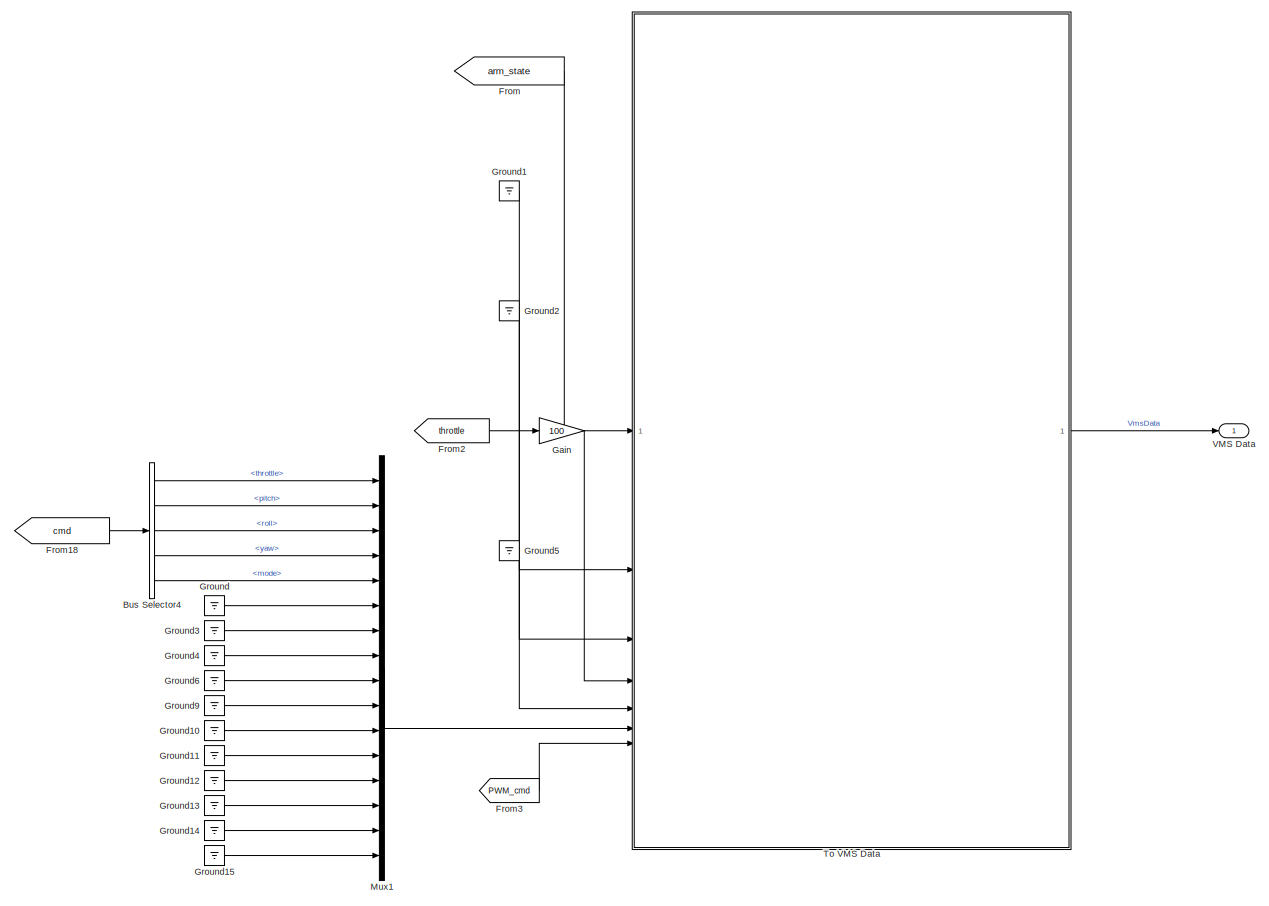
[diagram: root canvas - part 1/2, right side, full height]
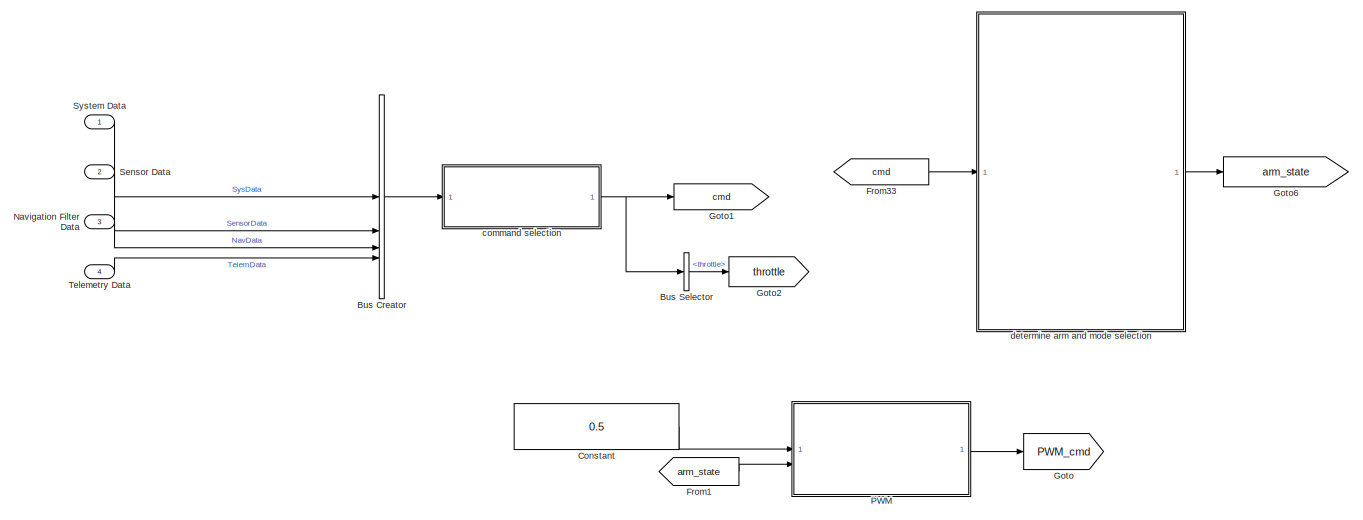
[diagram: root canvas - part 2/2, middle left region]
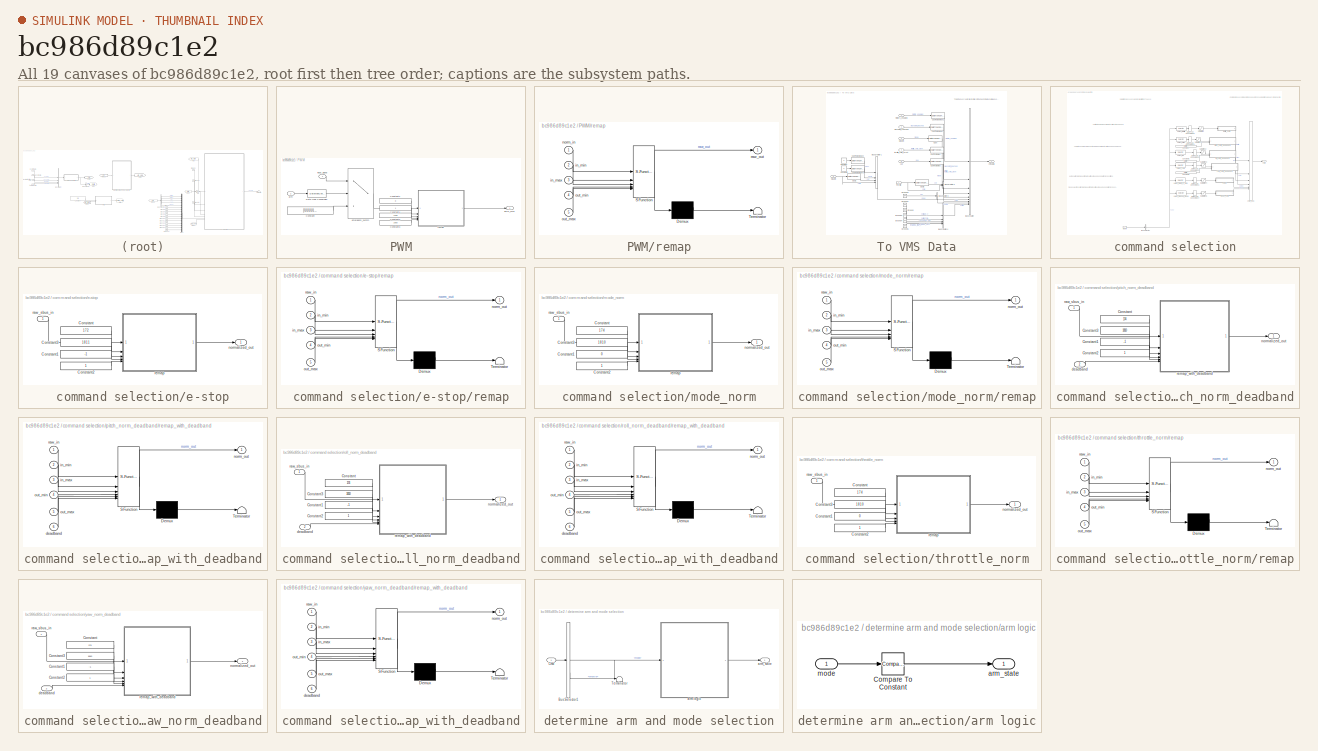
[diagram: thumbnail index - all 19 canvases of the model, root first then tree order]
MODEL slx_bc986d89c1e2
KIND model
CONFIG AbsTol = auto
CONFIG EnableMultiTasking = off
CONFIG FixedStep = 1/100
CONFIG MaxStep = auto
CONFIG MinStep = auto
CONFIG RelTol = 1e-3
CONFIG SampleTimeConstraint = Unconstrained
CONFIG SolverName = FixedStepAuto
CONFIG StartTime = 0.0
CONFIG StopTime = 10.0
BLOCK [BusCreator] Bus Creator
  DisplayOption = bar
  InheritFromInputs = on
  Inputs = 4
BLOCK [BusSelector] Bus Selector
  OutputSignals = throttle
BLOCK [BusSelector] Bus Selector4
  OutputSignals = throttle,pitch,roll,yaw,mode
BLOCK [Constant] Constant
  Value = 0.5
BLOCK [From] From
  GotoTag = arm_state
BLOCK [From] From1
  GotoTag = arm_state
BLOCK [From] From18
  GotoTag = cmd
BLOCK [From] From2
  GotoTag = throttle
BLOCK [From] From3
  GotoTag = PWM_cmd
BLOCK [From] From33
  GotoTag = cmd
BLOCK [Gain] Gain
  Gain = 100
BLOCK [Goto] Goto
  GotoTag = PWM_cmd
BLOCK [Goto] Goto1
  GotoTag = cmd
BLOCK [Goto] Goto2
  GotoTag = throttle
BLOCK [Goto] Goto6
  GotoTag = arm_state
BLOCK [Ground] Ground
BLOCK [Ground] Ground1
BLOCK [Ground] Ground10
BLOCK [Ground] Ground11
BLOCK [Ground] Ground12
BLOCK [Ground] Ground13
BLOCK [Ground] Ground14
BLOCK [Ground] Ground15
BLOCK [Ground] Ground2
BLOCK [Ground] Ground3
BLOCK [Ground] Ground4
BLOCK [Ground] Ground5
BLOCK [Ground] Ground6
BLOCK [Ground] Ground9
BLOCK [Mux] Mux1
  DisplayOption = bar
  Inputs = 16
BLOCK [Inport] Navigation Filter Data
  BusOutputAsStruct = on
  OutDataTypeStr = Bus: NavData
  Port = 3
  SampleTime = framePeriod_s
BLOCK [SubSystem] PWM
  NameLocation = top
BLOCK [Constant] PWM/Constant
  OutDataTypeStr = single
  Value = [0,0,0,0,0,0,0,0]
BLOCK [Constant] PWM/Constant1
  OutDataTypeStr = single
  Value = 0
BLOCK [Constant] PWM/Constant2
  OutDataTypeStr = single
  Value = 1100
BLOCK [Constant] PWM/Constant3
  OutDataTypeStr = single
  Value = 1950
BLOCK [Constant] PWM/Constant4
  OutDataTypeStr = single
BLOCK [DataTypeConversion] PWM/Data Type Conversion
  OutDataTypeStr = double
  RndMeth = Floor
  SaturateOnIntegerOverflow = off
BLOCK [Inport] PWM/arm
  Port = 2
BLOCK [Switch] PWM/emergency_switch
  Criteria = u2 > Threshold
  InputSameDT = off
  SaturateOnIntegerOverflow = off
  Threshold = 0.5
BLOCK [Inport] PWM/input_signal
BLOCK [Outport] PWM/pwm_cmd
BLOCK [SubSystem] PWM/remap
  ErrorFcn = Stateflow.Translate.translate
  PermitHierarchicalResolution = ExplicitOnly
  SFBlockType = MATLAB Function
  TreatAsAtomicUnit = on
BLOCK [Demux] PWM/remap/ Demux 
  Outputs = 1
BLOCK [S-Function] PWM/remap/ SFunction 
  EnableBusSupport = on
  FunctionName = sf_sfun
  PortCounts = [5 2]
  SFcnIsStateOwnerBlock = off
  SFunctionDeploymentMode = off
  Tag = Stateflow S-Function 18
BLOCK [Terminator] PWM/remap/ Terminator 
BLOCK [Inport] PWM/remap/in_max
  Port = 3
BLOCK [Inport] PWM/remap/in_min
  Port = 2
BLOCK [Inport] PWM/remap/norm_in
BLOCK [Inport] PWM/remap/out_max
  Port = 5
BLOCK [Inport] PWM/remap/out_min
  Port = 4
BLOCK [Outport] PWM/remap/raw_out
BLOCK [Inport] Sensor Data
  BusOutputAsStruct = on
  OutDataTypeStr = Bus: SensorData
  Port = 2
  SampleTime = framePeriod_s
BLOCK [Inport] System Data
  BusOutputAsStruct = on
  OutDataTypeStr = Bus: SysData
  SampleTime = framePeriod_s
BLOCK [Inport] Telemetry Data
  BusOutputAsStruct = on
  OutDataTypeStr = Bus: TelemData
  Port = 4
  SampleTime = framePeriod_s
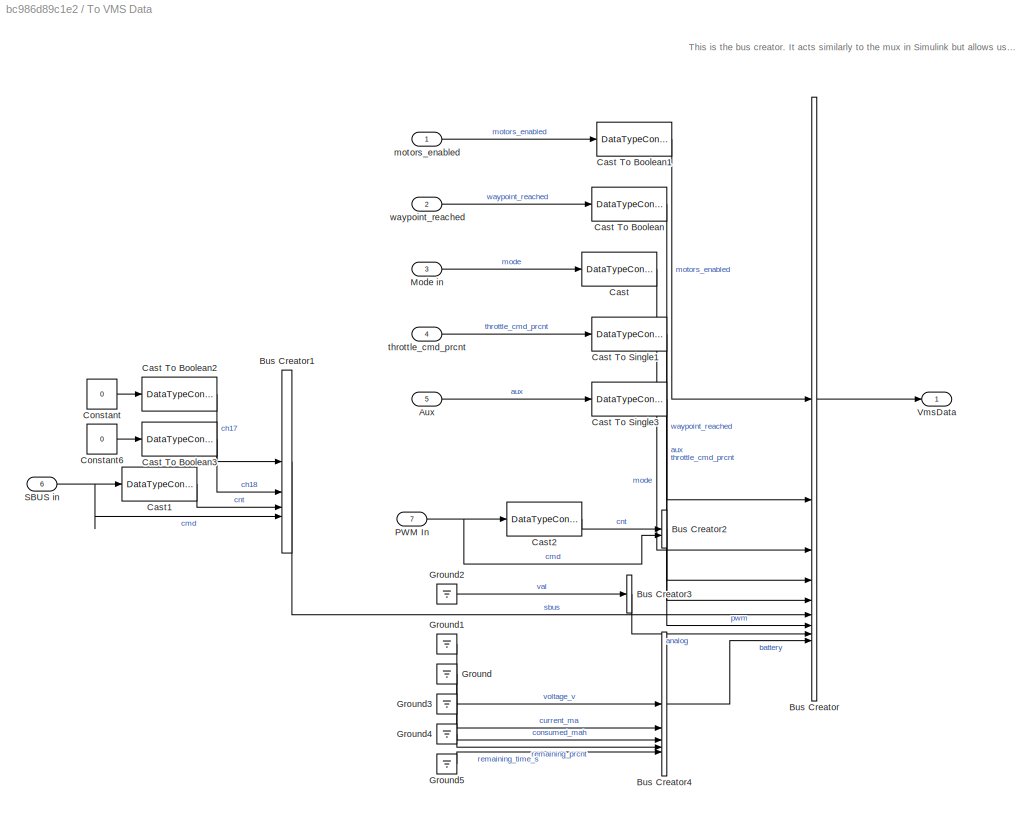
BLOCK [SubSystem] To VMS Data
BLOCK [Inport] To VMS Data/Aux
  Port = 5
BLOCK [BusCreator] To VMS Data/Bus Creator
  DisplayOption = bar
  InheritFromInputs = off
  Inputs = 9
  NonVirtualBus = on
  OutDataTypeStr = Bus: VmsData
BLOCK [BusCreator] To VMS Data/Bus Creator1
  DisplayOption = bar
  InheritFromInputs = on
  Inputs = 4
BLOCK [BusCreator] To VMS Data/Bus Creator2
  DisplayOption = bar
  InheritFromInputs = on
  Inputs = 2
BLOCK [BusCreator] To VMS Data/Bus Creator3
  DisplayOption = bar
  InheritFromInputs = on
  Inputs = 1
BLOCK [BusCreator] To VMS Data/Bus Creator4
  DisplayOption = bar
  InheritFromInputs = on
  Inputs = 5
BLOCK [DataTypeConversion] To VMS Data/Cast
  OutDataTypeStr = int8
  RndMeth = Floor
  SaturateOnIntegerOverflow = off
BLOCK [DataTypeConversion] To VMS Data/Cast To Boolean
  OutDataTypeStr = boolean
  RndMeth = Floor
  SaturateOnIntegerOverflow = off
BLOCK [DataTypeConversion] To VMS Data/Cast To Boolean1
  OutDataTypeStr = boolean
  RndMeth = Floor
  SaturateOnIntegerOverflow = off
BLOCK [DataTypeConversion] To VMS Data/Cast To Boolean2
  OutDataTypeStr = boolean
  RndMeth = Floor
  SaturateOnIntegerOverflow = off
BLOCK [DataTypeConversion] To VMS Data/Cast To Boolean3
  OutDataTypeStr = boolean
  RndMeth = Floor
  SaturateOnIntegerOverflow = off
BLOCK [DataTypeConversion] To VMS Data/Cast To Single1
  OutDataTypeStr = single
  RndMeth = Floor
  SaturateOnIntegerOverflow = off
BLOCK [DataTypeConversion] To VMS Data/Cast To Single3
  OutDataTypeStr = single
  RndMeth = Floor
  SaturateOnIntegerOverflow = off
BLOCK [DataTypeConversion] To VMS Data/Cast1
  OutDataTypeStr = int16
  RndMeth = Floor
  SaturateOnIntegerOverflow = off
BLOCK [DataTypeConversion] To VMS Data/Cast2
  OutDataTypeStr = int16
  RndMeth = Floor
  SaturateOnIntegerOverflow = off
BLOCK [Constant] To VMS Data/Constant
  Value = 0
BLOCK [Constant] To VMS Data/Constant6
  Value = 0
BLOCK [Ground] To VMS Data/Ground
BLOCK [Ground] To VMS Data/Ground1
BLOCK [Ground] To VMS Data/Ground2
BLOCK [Ground] To VMS Data/Ground3
BLOCK [Ground] To VMS Data/Ground4
BLOCK [Ground] To VMS Data/Ground5
BLOCK [Inport] To VMS Data/Mode in
  Port = 3
BLOCK [Inport] To VMS Data/PWM In
  Port = 7
BLOCK [Inport] To VMS Data/SBUS in
  Port = 6
BLOCK [Outport] To VMS Data/VmsData
BLOCK [Inport] To VMS Data/motors_enabled
BLOCK [Inport] To VMS Data/throttle_cmd_prcnt
  Port = 4
BLOCK [Inport] To VMS Data/waypoint_reached
  Port = 2
BLOCK [Outport] VMS Data
  BusOutputAsStruct = on
  OutDataTypeStr = Bus: VmsData
  SampleTime = framePeriod_s
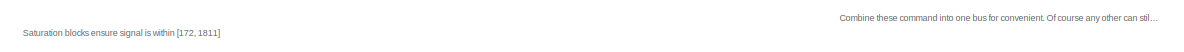
[diagram: command selection - part 1/3, full width, top band]
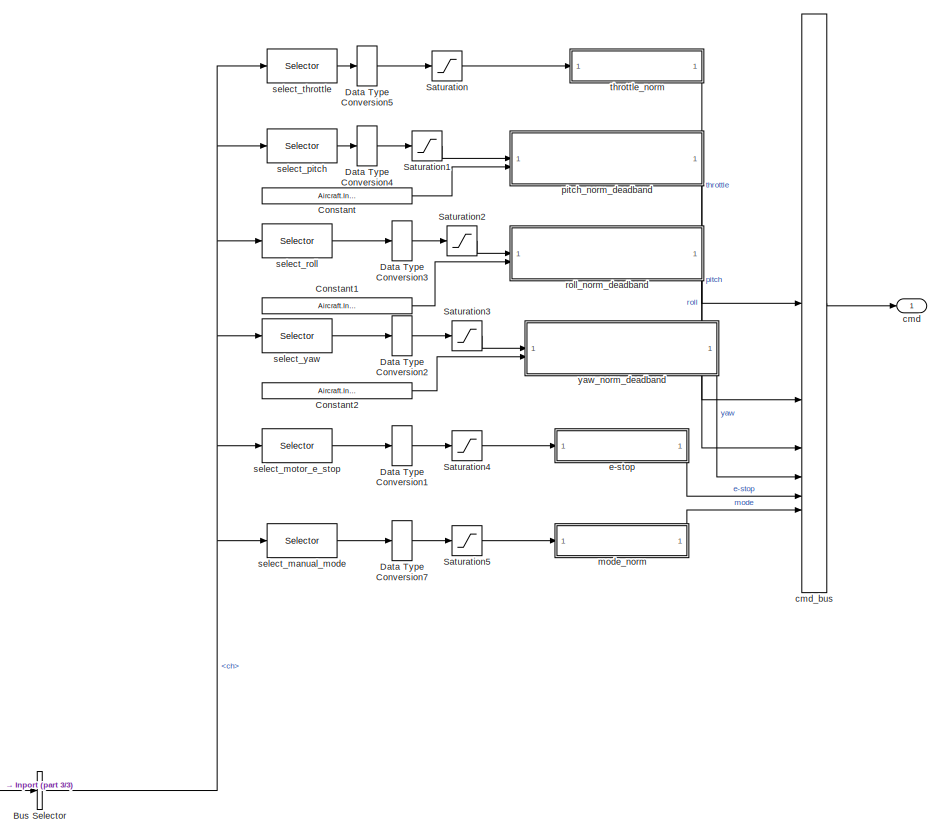
[diagram: command selection - part 2/3, center side, full height]
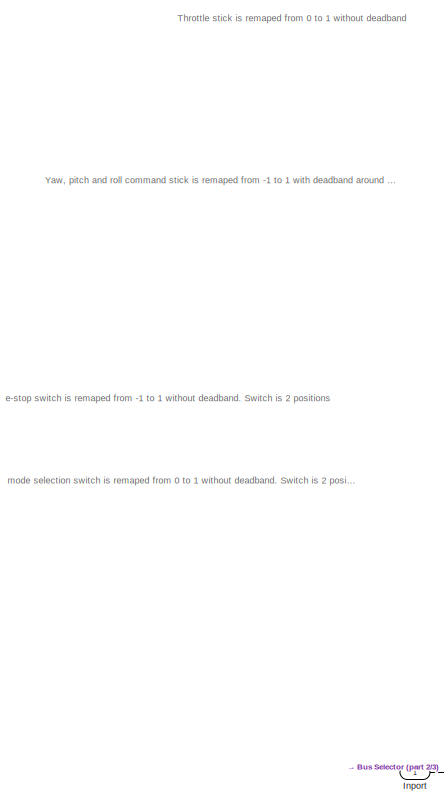
[diagram: command selection - part 3/3, left side, full height]
BLOCK [SubSystem] command selection
BLOCK [BusSelector] command selection/Bus Selector
  OutputSignals = SensorData.inceptor.ch
BLOCK [Constant] command selection/Constant
  OutDataTypeStr = single
  Value = Aircraft.Inceptor.deadband
BLOCK [Constant] command selection/Constant1
  OutDataTypeStr = single
  Value = Aircraft.Inceptor.deadband
BLOCK [Constant] command selection/Constant2
  OutDataTypeStr = single
  Value = Aircraft.Inceptor.deadband
BLOCK [DataTypeConversion] command selection/Data Type Conversion1
  OutDataTypeStr = single
  RndMeth = Floor
  SaturateOnIntegerOverflow = off
BLOCK [DataTypeConversion] command selection/Data Type Conversion2
  OutDataTypeStr = single
  RndMeth = Floor
  SaturateOnIntegerOverflow = off
BLOCK [DataTypeConversion] command selection/Data Type Conversion3
  OutDataTypeStr = single
  RndMeth = Floor
  SaturateOnIntegerOverflow = off
BLOCK [DataTypeConversion] command selection/Data Type Conversion4
  OutDataTypeStr = single
  RndMeth = Floor
  SaturateOnIntegerOverflow = off
BLOCK [DataTypeConversion] command selection/Data Type Conversion5
  OutDataTypeStr = single
  RndMeth = Floor
  SaturateOnIntegerOverflow = off
BLOCK [DataTypeConversion] command selection/Data Type Conversion7
  OutDataTypeStr = single
  RndMeth = Floor
  SaturateOnIntegerOverflow = off
BLOCK [Inport] command selection/Inport
BLOCK [Saturate] command selection/Saturation
  LowerLimit = 174
  UpperLimit = 1810
BLOCK [Saturate] command selection/Saturation1
  LowerLimit = 174
  UpperLimit = 1810
BLOCK [Saturate] command selection/Saturation2
  LowerLimit = 174
  UpperLimit = 1810
BLOCK [Saturate] command selection/Saturation3
  LowerLimit = 174
  UpperLimit = 1810
BLOCK [Saturate] command selection/Saturation4
  LowerLimit = 174
  UpperLimit = 1810
BLOCK [Saturate] command selection/Saturation5
  LowerLimit = 174
  UpperLimit = 1810
BLOCK [Outport] command selection/cmd
BLOCK [BusCreator] command selection/cmd_bus
  DisplayOption = bar
  InheritFromInputs = on
  Inputs = 6
BLOCK [SubSystem] command selection/e-stop
BLOCK [Constant] command selection/e-stop/Constant
  OutDataTypeStr = single
  Value = 172
BLOCK [Constant] command selection/e-stop/Constant1
  OutDataTypeStr = single
  Value = -1
BLOCK [Constant] command selection/e-stop/Constant2
  OutDataTypeStr = single
BLOCK [Constant] command selection/e-stop/Constant3
  OutDataTypeStr = single
  Value = 1811
BLOCK [Outport] command selection/e-stop/normalized_out
BLOCK [Inport] command selection/e-stop/raw_sbus_in
BLOCK [SubSystem] command selection/e-stop/remap
  ErrorFcn = Stateflow.Translate.translate
  PermitHierarchicalResolution = ExplicitOnly
  SFBlockType = MATLAB Function
  TreatAsAtomicUnit = on
BLOCK [Demux] command selection/e-stop/remap/ Demux 
  Outputs = 1
BLOCK [S-Function] command selection/e-stop/remap/ SFunction 
  EnableBusSupport = on
  FunctionName = sf_sfun
  PortCounts = [5 2]
  SFcnIsStateOwnerBlock = off
  SFunctionDeploymentMode = off
  Tag = Stateflow S-Function 8
BLOCK [Terminator] command selection/e-stop/remap/ Terminator 
BLOCK [Inport] command selection/e-stop/remap/in_max
  Port = 3
BLOCK [Inport] command selection/e-stop/remap/in_min
  Port = 2
BLOCK [Outport] command selection/e-stop/remap/norm_out
BLOCK [Inport] command selection/e-stop/remap/out_max
  Port = 5
BLOCK [Inport] command selection/e-stop/remap/out_min
  Port = 4
BLOCK [Inport] command selection/e-stop/remap/raw_in
BLOCK [SubSystem] command selection/mode_norm
BLOCK [Constant] command selection/mode_norm/Constant
  OutDataTypeStr = single
  Value = 174
BLOCK [Constant] command selection/mode_norm/Constant1
  OutDataTypeStr = single
  Value = 0
BLOCK [Constant] command selection/mode_norm/Constant2
  OutDataTypeStr = single
BLOCK [Constant] command selection/mode_norm/Constant3
  OutDataTypeStr = single
  Value = 1810
BLOCK [Outport] command selection/mode_norm/normalized_out
BLOCK [Inport] command selection/mode_norm/raw_sbus_in
BLOCK [SubSystem] command selection/mode_norm/remap
  ErrorFcn = Stateflow.Translate.translate
  PermitHierarchicalResolution = ExplicitOnly
  SFBlockType = MATLAB Function
  TreatAsAtomicUnit = on
BLOCK [Demux] command selection/mode_norm/remap/ Demux 
  Outputs = 1
BLOCK [S-Function] command selection/mode_norm/remap/ SFunction 
  EnableBusSupport = on
  FunctionName = sf_sfun
  PortCounts = [5 2]
  SFcnIsStateOwnerBlock = off
  SFunctionDeploymentMode = off
  Tag = Stateflow S-Function 9
BLOCK [Terminator] command selection/mode_norm/remap/ Terminator 
BLOCK [Inport] command selection/mode_norm/remap/in_max
  Port = 3
BLOCK [Inport] command selection/mode_norm/remap/in_min
  Port = 2
BLOCK [Outport] command selection/mode_norm/remap/norm_out
BLOCK [Inport] command selection/mode_norm/remap/out_max
  Port = 5
BLOCK [Inport] command selection/mode_norm/remap/out_min
  Port = 4
BLOCK [Inport] command selection/mode_norm/remap/raw_in
BLOCK [SubSystem] command selection/pitch_norm_deadband
BLOCK [Constant] command selection/pitch_norm_deadband/Constant
  OutDataTypeStr = single
  Value = 174
BLOCK [Constant] command selection/pitch_norm_deadband/Constant1
  OutDataTypeStr = single
  Value = -1
BLOCK [Constant] command selection/pitch_norm_deadband/Constant2
  OutDataTypeStr = single
BLOCK [Constant] command selection/pitch_norm_deadband/Constant3
  OutDataTypeStr = single
  Value = 1810
BLOCK [Inport] command selection/pitch_norm_deadband/deadband
  Port = 2
BLOCK [Outport] command selection/pitch_norm_deadband/normalized_out
BLOCK [Inport] command selection/pitch_norm_deadband/raw_sbus_in
BLOCK [SubSystem] command selection/pitch_norm_deadband/remap_with_deadband
  ErrorFcn = Stateflow.Translate.translate
  PermitHierarchicalResolution = ExplicitOnly
  SFBlockType = MATLAB Function
  TreatAsAtomicUnit = on
BLOCK [Demux] command selection/pitch_norm_deadband/remap_with_deadband/ Demux 
  Outputs = 1
BLOCK [S-Function] command selection/pitch_norm_deadband/remap_with_deadband/ SFunction 
  EnableBusSupport = on
  FunctionName = sf_sfun
  PortCounts = [6 2]
  SFcnIsStateOwnerBlock = off
  SFunctionDeploymentMode = off
  Tag = Stateflow S-Function 7
BLOCK [Terminator] command selection/pitch_norm_deadband/remap_with_deadband/ Terminator 
BLOCK [Inport] command selection/pitch_norm_deadband/remap_with_deadband/deadband
  Port = 6
BLOCK [Inport] command selection/pitch_norm_deadband/remap_with_deadband/in_max
  Port = 3
BLOCK [Inport] command selection/pitch_norm_deadband/remap_with_deadband/in_min
  Port = 2
BLOCK [Outport] command selection/pitch_norm_deadband/remap_with_deadband/norm_out
BLOCK [Inport] command selection/pitch_norm_deadband/remap_with_deadband/out_max
  Port = 5
BLOCK [Inport] command selection/pitch_norm_deadband/remap_with_deadband/out_min
  Port = 4
BLOCK [Inport] command selection/pitch_norm_deadband/remap_with_deadband/raw_in
BLOCK [SubSystem] command selection/roll_norm_deadband
BLOCK [Constant] command selection/roll_norm_deadband/Constant
  OutDataTypeStr = single
  Value = 174
BLOCK [Constant] command selection/roll_norm_deadband/Constant1
  OutDataTypeStr = single
  Value = -1
BLOCK [Constant] command selection/roll_norm_deadband/Constant2
  OutDataTypeStr = single
BLOCK [Constant] command selection/roll_norm_deadband/Constant3
  OutDataTypeStr = single
  Value = 1810
BLOCK [Inport] command selection/roll_norm_deadband/deadband
  Port = 2
BLOCK [Outport] command selection/roll_norm_deadband/normalized_out
BLOCK [Inport] command selection/roll_norm_deadband/raw_sbus_in
BLOCK [SubSystem] command selection/roll_norm_deadband/remap_with_deadband
  ErrorFcn = Stateflow.Translate.translate
  PermitHierarchicalResolution = ExplicitOnly
  SFBlockType = MATLAB Function
  TreatAsAtomicUnit = on
BLOCK [Demux] command selection/roll_norm_deadband/remap_with_deadband/ Demux 
  Outputs = 1
BLOCK [S-Function] command selection/roll_norm_deadband/remap_with_deadband/ SFunction 
  EnableBusSupport = on
  FunctionName = sf_sfun
  PortCounts = [6 2]
  SFcnIsStateOwnerBlock = off
  SFunctionDeploymentMode = off
  Tag = Stateflow S-Function 6
BLOCK [Terminator] command selection/roll_norm_deadband/remap_with_deadband/ Terminator 
BLOCK [Inport] command selection/roll_norm_deadband/remap_with_deadband/deadband
  Port = 6
BLOCK [Inport] command selection/roll_norm_deadband/remap_with_deadband/in_max
  Port = 3
BLOCK [Inport] command selection/roll_norm_deadband/remap_with_deadband/in_min
  Port = 2
BLOCK [Outport] command selection/roll_norm_deadband/remap_with_deadband/norm_out
BLOCK [Inport] command selection/roll_norm_deadband/remap_with_deadband/out_max
  Port = 5
BLOCK [Inport] command selection/roll_norm_deadband/remap_with_deadband/out_min
  Port = 4
BLOCK [Inport] command selection/roll_norm_deadband/remap_with_deadband/raw_in
BLOCK [Selector] command selection/select_manual_mode
  IndexOptions = Index vector (dialog)
  Indices = 5
  OutputSizes = 1
BLOCK [Selector] command selection/select_motor_e_stop
  IndexOptions = Index vector (dialog)
  Indices = 7
  OutputSizes = 1
BLOCK [Selector] command selection/select_pitch
  IndexOptions = Index vector (dialog)
  Indices = 3
  OutputSizes = 1
BLOCK [Selector] command selection/select_roll
  IndexOptions = Index vector (dialog)
  Indices = 2
  OutputSizes = 1
BLOCK [Selector] command selection/select_throttle
  IndexOptions = Index vector (dialog)
  Indices = 1
  OutputSizes = 1
BLOCK [Selector] command selection/select_yaw
  IndexOptions = Index vector (dialog)
  Indices = 4
  OutputSizes = 1
BLOCK [SubSystem] command selection/throttle_norm
BLOCK [Constant] command selection/throttle_norm/Constant
  OutDataTypeStr = single
  Value = 174
BLOCK [Constant] command selection/throttle_norm/Constant1
  OutDataTypeStr = single
  Value = 0
BLOCK [Constant] command selection/throttle_norm/Constant2
  OutDataTypeStr = single
BLOCK [Constant] command selection/throttle_norm/Constant3
  OutDataTypeStr = single
  Value = 1810
BLOCK [Outport] command selection/throttle_norm/normalized_out
BLOCK [Inport] command selection/throttle_norm/raw_sbus_in
BLOCK [SubSystem] command selection/throttle_norm/remap
  ErrorFcn = Stateflow.Translate.translate
  PermitHierarchicalResolution = ExplicitOnly
  SFBlockType = MATLAB Function
  TreatAsAtomicUnit = on
BLOCK [Demux] command selection/throttle_norm/remap/ Demux 
  Outputs = 1
BLOCK [S-Function] command selection/throttle_norm/remap/ SFunction 
  EnableBusSupport = on
  FunctionName = sf_sfun
  PortCounts = [5 2]
  SFcnIsStateOwnerBlock = off
  SFunctionDeploymentMode = off
  Tag = Stateflow S-Function 4
BLOCK [Terminator] command selection/throttle_norm/remap/ Terminator 
BLOCK [Inport] command selection/throttle_norm/remap/in_max
  Port = 3
BLOCK [Inport] command selection/throttle_norm/remap/in_min
  Port = 2
BLOCK [Outport] command selection/throttle_norm/remap/norm_out
BLOCK [Inport] command selection/throttle_norm/remap/out_max
  Port = 5
BLOCK [Inport] command selection/throttle_norm/remap/out_min
  Port = 4
BLOCK [Inport] command selection/throttle_norm/remap/raw_in
BLOCK [SubSystem] command selection/yaw_norm_deadband
BLOCK [Constant] command selection/yaw_norm_deadband/Constant
  OutDataTypeStr = single
  Value = 174
BLOCK [Constant] command selection/yaw_norm_deadband/Constant1
  OutDataTypeStr = single
  Value = -1
BLOCK [Constant] command selection/yaw_norm_deadband/Constant2
  OutDataTypeStr = single
BLOCK [Constant] command selection/yaw_norm_deadband/Constant3
  OutDataTypeStr = single
  Value = 1810
BLOCK [Inport] command selection/yaw_norm_deadband/deadband
  Port = 2
BLOCK [Outport] command selection/yaw_norm_deadband/normalized_out
BLOCK [Inport] command selection/yaw_norm_deadband/raw_sbus_in
BLOCK [SubSystem] command selection/yaw_norm_deadband/remap_with_deadband
  ErrorFcn = Stateflow.Translate.translate
  PermitHierarchicalResolution = ExplicitOnly
  SFBlockType = MATLAB Function
  TreatAsAtomicUnit = on
BLOCK [Demux] command selection/yaw_norm_deadband/remap_with_deadband/ Demux 
  Outputs = 1
BLOCK [S-Function] command selection/yaw_norm_deadband/remap_with_deadband/ SFunction 
  EnableBusSupport = on
  FunctionName = sf_sfun
  PortCounts = [6 2]
  SFcnIsStateOwnerBlock = off
  SFunctionDeploymentMode = off
  Tag = Stateflow S-Function 1
BLOCK [Terminator] command selection/yaw_norm_deadband/remap_with_deadband/ Terminator 
BLOCK [Inport] command selection/yaw_norm_deadband/remap_with_deadband/deadband
  Port = 6
BLOCK [Inport] command selection/yaw_norm_deadband/remap_with_deadband/in_max
  Port = 3
BLOCK [Inport] command selection/yaw_norm_deadband/remap_with_deadband/in_min
  Port = 2
BLOCK [Outport] command selection/yaw_norm_deadband/remap_with_deadband/norm_out
BLOCK [Inport] command selection/yaw_norm_deadband/remap_with_deadband/out_max
  Port = 5
BLOCK [Inport] command selection/yaw_norm_deadband/remap_with_deadband/out_min
  Port = 4
BLOCK [Inport] command selection/yaw_norm_deadband/remap_with_deadband/raw_in
BLOCK [SubSystem] determine arm and mode selection
BLOCK [BusSelector] determine arm and mode selection/Bus Selector1
  OutputSignals = mode,throttle
BLOCK [Inport] determine arm and mode selection/Cmd
BLOCK [Terminator] determine arm and mode selection/Terminator
BLOCK [SubSystem] determine arm and mode selection/arm logic
BLOCK [Reference] determine arm and mode selection/arm logic/Compare To Constant  REF=simulink/Logic and Bit
Operations/Compare
To Constant
  SourceBlock = simulink/Logic and Bit\nOperations/Compare\nTo Constant
  SourceType = Compare To Constant
BLOCK [Outport] determine arm and mode selection/arm logic/arm_state
BLOCK [Inport] determine arm and mode selection/arm logic/mode
BLOCK [Outport] determine arm and mode selection/arm_state
ANNOTATION To VMS Data: This is the bus creator. It acts similarly to the mux in Simulink but allows user match the inputs to the an arbitrary struct. This is useful to define interfaces. Check how this bus is matching with the VMS data struct in global_definitions.h
ANNOTATION command selection: Combine these command into one bus for convenient. Of course any other can still be accessed and used for any other purpose outside this "cmd" bus
ANNOTATION command selection: Saturation blocks ensure signal is within [172, 1811]
ANNOTATION command selection: Throttle stick is remaped from 0 to 1 without deadband
ANNOTATION command selection: Yaw, pitch and roll command stick is remaped from -1 to 1 with deadband around mid point
ANNOTATION command selection: e-stop switch is remaped from -1 to 1 without deadband. Switch is 2 positions
ANNOTATION command selection: mode selection switch is remaped from 0 to 1 without deadband. Switch is 2 positions
LINE Bus Creator:1 -> command selection:1
LINE Bus Selector4:1 -> Mux1:1
LINE Bus Selector4:2 -> Mux1:2
LINE Bus Selector4:3 -> Mux1:3
LINE Bus Selector4:4 -> Mux1:4
LINE Bus Selector4:5 -> Mux1:5
LINE Bus Selector:1 -> Goto2:1
LINE Constant:1 -> PWM:1
LINE From18:1 -> Bus Selector4:1
LINE From1:1 -> PWM:2
LINE From2:1 -> Gain:1
LINE From33:1 -> determine arm and mode selection:1
LINE From3:1 -> To VMS Data:7
LINE From:1 -> To VMS Data:1
LINE Gain:1 -> To VMS Data:4
LINE Ground10:1 -> Mux1:11
LINE Ground11:1 -> Mux1:12
LINE Ground12:1 -> Mux1:13
LINE Ground13:1 -> Mux1:14
LINE Ground14:1 -> Mux1:15
LINE Ground15:1 -> Mux1:16
LINE Ground1:1 -> To VMS Data:2
LINE Ground2:1 -> To VMS Data:3
LINE Ground3:1 -> Mux1:7
LINE Ground4:1 -> Mux1:8
LINE Ground5:1 -> To VMS Data:5
LINE Ground6:1 -> Mux1:9
LINE Ground9:1 -> Mux1:10
LINE Ground:1 -> Mux1:6
LINE Mux1:1 -> To VMS Data:6
LINE Navigation Filter Data:1 -> Bus Creator:3
LINE PWM/Constant1:1 -> PWM/remap:2
LINE PWM/Constant2:1 -> PWM/remap:4
LINE PWM/Constant3:1 -> PWM/remap:5
LINE PWM/Constant4:1 -> PWM/remap:3
LINE PWM/Constant:1 -> PWM/emergency_switch:3
LINE PWM/Data Type Conversion:1 -> PWM/emergency_switch:2
LINE PWM/arm:1 -> PWM/Data Type Conversion:1
LINE PWM/emergency_switch:1 -> PWM/remap:1
LINE PWM/input_signal:1 -> PWM/emergency_switch:1
LINE PWM/remap:1 -> PWM/pwm_cmd:1
LINE PWM:1 -> Goto:1
LINE Sensor Data:1 -> Bus Creator:2
LINE System Data:1 -> Bus Creator:1
LINE Telemetry Data:1 -> Bus Creator:4
LINE To VMS Data/Aux:1 -> To VMS Data/Cast To Single3:1
LINE To VMS Data/Bus Creator1:1 -> To VMS Data/Bus Creator:6
LINE To VMS Data/Bus Creator2:1 -> To VMS Data/Bus Creator:7
LINE To VMS Data/Bus Creator3:1 -> To VMS Data/Bus Creator:8
LINE To VMS Data/Bus Creator4:1 -> To VMS Data/Bus Creator:9
LINE To VMS Data/Bus Creator:1 -> To VMS Data/VmsData:1
LINE To VMS Data/Cast To Boolean1:1 -> To VMS Data/Bus Creator:1
LINE To VMS Data/Cast To Boolean2:1 -> To VMS Data/Bus Creator1:1
LINE To VMS Data/Cast To Boolean3:1 -> To VMS Data/Bus Creator1:2
LINE To VMS Data/Cast To Boolean:1 -> To VMS Data/Bus Creator:2
LINE To VMS Data/Cast To Single1:1 -> To VMS Data/Bus Creator:4
LINE To VMS Data/Cast To Single3:1 -> To VMS Data/Bus Creator:5
LINE To VMS Data/Cast1:1 -> To VMS Data/Bus Creator1:3
LINE To VMS Data/Cast2:1 -> To VMS Data/Bus Creator2:1
LINE To VMS Data/Cast:1 -> To VMS Data/Bus Creator:3
LINE To VMS Data/Constant6:1 -> To VMS Data/Cast To Boolean3:1
LINE To VMS Data/Constant:1 -> To VMS Data/Cast To Boolean2:1
LINE To VMS Data/Ground1:1 -> To VMS Data/Bus Creator4:1
LINE To VMS Data/Ground2:1 -> To VMS Data/Bus Creator3:1
LINE To VMS Data/Ground3:1 -> To VMS Data/Bus Creator4:3
LINE To VMS Data/Ground4:1 -> To VMS Data/Bus Creator4:4
LINE To VMS Data/Ground5:1 -> To VMS Data/Bus Creator4:5
LINE To VMS Data/Ground:1 -> To VMS Data/Bus Creator4:2
LINE To VMS Data/Mode in:1 -> To VMS Data/Cast:1
NET To VMS Data/PWM In:1 -> To VMS Data/Bus Creator2:2, To VMS Data/Cast2:1
NET To VMS Data/SBUS in:1 -> To VMS Data/Bus Creator1:4, To VMS Data/Cast1:1
LINE To VMS Data/motors_enabled:1 -> To VMS Data/Cast To Boolean1:1
LINE To VMS Data/throttle_cmd_prcnt:1 -> To VMS Data/Cast To Single1:1
LINE To VMS Data/waypoint_reached:1 -> To VMS Data/Cast To Boolean:1
LINE To VMS Data:1 -> VMS Data:1
NET command selection/Bus Selector:1 -> command selection/select_manual_mode:1, command selection/select_motor_e_stop:1, command selection/select_pitch:1, command selection/select_roll:1, command selection/select_throttle:1, command selection/select_yaw:1
LINE command selection/Constant1:1 -> command selection/roll_norm_deadband:2
LINE command selection/Constant2:1 -> command selection/yaw_norm_deadband:2
LINE command selection/Constant:1 -> command selection/pitch_norm_deadband:2
LINE command selection/Data Type Conversion1:1 -> command selection/Saturation4:1
LINE command selection/Data Type Conversion2:1 -> command selection/Saturation3:1
LINE command selection/Data Type Conversion3:1 -> command selection/Saturation2:1
LINE command selection/Data Type Conversion4:1 -> command selection/Saturation1:1
LINE command selection/Data Type Conversion5:1 -> command selection/Saturation:1
LINE command selection/Data Type Conversion7:1 -> command selection/Saturation5:1
LINE command selection/Inport:1 -> command selection/Bus Selector:1
LINE command selection/Saturation1:1 -> command selection/pitch_norm_deadband:1
LINE command selection/Saturation2:1 -> command selection/roll_norm_deadband:1
LINE command selection/Saturation3:1 -> command selection/yaw_norm_deadband:1
LINE command selection/Saturation4:1 -> command selection/e-stop:1
LINE command selection/Saturation5:1 -> command selection/mode_norm:1
LINE command selection/Saturation:1 -> command selection/throttle_norm:1
LINE command selection/cmd_bus:1 -> command selection/cmd:1
LINE command selection/e-stop/Constant1:1 -> command selection/e-stop/remap:4
LINE command selection/e-stop/Constant2:1 -> command selection/e-stop/remap:5
LINE command selection/e-stop/Constant3:1 -> command selection/e-stop/remap:3
LINE command selection/e-stop/Constant:1 -> command selection/e-stop/remap:2
LINE command selection/e-stop/raw_sbus_in:1 -> command selection/e-stop/remap:1
LINE command selection/e-stop/remap:1 -> command selection/e-stop/normalized_out:1
LINE command selection/e-stop:1 -> command selection/cmd_bus:5
LINE command selection/mode_norm/Constant1:1 -> command selection/mode_norm/remap:4
LINE command selection/mode_norm/Constant2:1 -> command selection/mode_norm/remap:5
LINE command selection/mode_norm/Constant3:1 -> command selection/mode_norm/remap:3
LINE command selection/mode_norm/Constant:1 -> command selection/mode_norm/remap:2
LINE command selection/mode_norm/raw_sbus_in:1 -> command selection/mode_norm/remap:1
LINE command selection/mode_norm/remap:1 -> command selection/mode_norm/normalized_out:1
LINE command selection/mode_norm:1 -> command selection/cmd_bus:6
LINE command selection/pitch_norm_deadband/Constant1:1 -> command selection/pitch_norm_deadband/remap_with_deadband:4
LINE command selection/pitch_norm_deadband/Constant2:1 -> command selection/pitch_norm_deadband/remap_with_deadband:5
LINE command selection/pitch_norm_deadband/Constant3:1 -> command selection/pitch_norm_deadband/remap_with_deadband:3
LINE command selection/pitch_norm_deadband/Constant:1 -> command selection/pitch_norm_deadband/remap_with_deadband:2
LINE command selection/pitch_norm_deadband/deadband:1 -> command selection/pitch_norm_deadband/remap_with_deadband:6
LINE command selection/pitch_norm_deadband/raw_sbus_in:1 -> command selection/pitch_norm_deadband/remap_with_deadband:1
LINE command selection/pitch_norm_deadband/remap_with_deadband:1 -> command selection/pitch_norm_deadband/normalized_out:1
LINE command selection/pitch_norm_deadband:1 -> command selection/cmd_bus:2
LINE command selection/roll_norm_deadband/Constant1:1 -> command selection/roll_norm_deadband/remap_with_deadband:4
LINE command selection/roll_norm_deadband/Constant2:1 -> command selection/roll_norm_deadband/remap_with_deadband:5
LINE command selection/roll_norm_deadband/Constant3:1 -> command selection/roll_norm_deadband/remap_with_deadband:3
LINE command selection/roll_norm_deadband/Constant:1 -> command selection/roll_norm_deadband/remap_with_deadband:2
LINE command selection/roll_norm_deadband/deadband:1 -> command selection/roll_norm_deadband/remap_with_deadband:6
LINE command selection/roll_norm_deadband/raw_sbus_in:1 -> command selection/roll_norm_deadband/remap_with_deadband:1
LINE command selection/roll_norm_deadband/remap_with_deadband:1 -> command selection/roll_norm_deadband/normalized_out:1
LINE command selection/roll_norm_deadband:1 -> command selection/cmd_bus:3
LINE command selection/select_manual_mode:1 -> command selection/Data Type Conversion7:1
LINE command selection/select_motor_e_stop:1 -> command selection/Data Type Conversion1:1
LINE command selection/select_pitch:1 -> command selection/Data Type Conversion4:1
LINE command selection/select_roll:1 -> command selection/Data Type Conversion3:1
LINE command selection/select_throttle:1 -> command selection/Data Type Conversion5:1
LINE command selection/select_yaw:1 -> command selection/Data Type Conversion2:1
LINE command selection/throttle_norm/Constant1:1 -> command selection/throttle_norm/remap:4
LINE command selection/throttle_norm/Constant2:1 -> command selection/throttle_norm/remap:5
LINE command selection/throttle_norm/Constant3:1 -> command selection/throttle_norm/remap:3
LINE command selection/throttle_norm/Constant:1 -> command selection/throttle_norm/remap:2
LINE command selection/throttle_norm/raw_sbus_in:1 -> command selection/throttle_norm/remap:1
LINE command selection/throttle_norm/remap:1 -> command selection/throttle_norm/normalized_out:1
LINE command selection/throttle_norm:1 -> command selection/cmd_bus:1
LINE command selection/yaw_norm_deadband/Constant1:1 -> command selection/yaw_norm_deadband/remap_with_deadband:4
LINE command selection/yaw_norm_deadband/Constant2:1 -> command selection/yaw_norm_deadband/remap_with_deadband:5
LINE command selection/yaw_norm_deadband/Constant3:1 -> command selection/yaw_norm_deadband/remap_with_deadband:3
LINE command selection/yaw_norm_deadband/Constant:1 -> command selection/yaw_norm_deadband/remap_with_deadband:2
LINE command selection/yaw_norm_deadband/deadband:1 -> command selection/yaw_norm_deadband/remap_with_deadband:6
LINE command selection/yaw_norm_deadband/raw_sbus_in:1 -> command selection/yaw_norm_deadband/remap_with_deadband:1
LINE command selection/yaw_norm_deadband/remap_with_deadband:1 -> command selection/yaw_norm_deadband/normalized_out:1
LINE command selection/yaw_norm_deadband:1 -> command selection/cmd_bus:4
NET command selection:1 -> Bus Selector:1, Goto1:1
LINE determine arm and mode selection/Bus Selector1:1 -> determine arm and mode selection/arm logic:1
LINE determine arm and mode selection/Bus Selector1:2 -> determine arm and mode selection/Terminator:1
LINE determine arm and mode selection/Cmd:1 -> determine arm and mode selection/Bus Selector1:1
LINE determine arm and mode selection/arm logic/Compare To Constant:1 -> determine arm and mode selection/arm logic/arm_state:1
LINE determine arm and mode selection/arm logic/mode:1 -> determine arm and mode selection/arm logic/Compare To Constant:1
LINE determine arm and mode selection/arm logic:1 -> determine arm and mode selection/arm_state:1
LINE determine arm and mode selection:1 -> Goto6:1
note: NET lines group one-source signal fan-out (src -> all destinations, sorted); 1:1 wires keep LINE
CHART command selection/yaw_norm_deadband/remap_with_deadband states=1 transitions=1
  STATE_LABEL 'eML_blk_kernel()'
  STATE_LABEL 'SCRIPT:\nfunction norm_out = remap_deadband(raw_in, in_min, in_max, out_min, out_max, deadband)\nin_avg = (in_min + in_max) / 2;\nout_avg = (out_min + out_max) / 2;\n\nin_deadband_range = (in_max - in_min) * deadband / 2;\nin_deadband_low = in_avg - in_deadband_range;\nin_deadband_hi = in_avg + in_deadband_range;\n\nif raw_in < in_deadband_low\n    norm_out = (raw_in - in_deadband_low) .* (out_max - out_avg...<+238ch>'  <repeated x3 — deduplicated; at blocks: remap_with_deadband>
CHART command selection/throttle_norm/remap states=1 transitions=1
  STATE_LABEL 'eML_blk_kernel()'
  STATE_LABEL 'SCRIPT:\nfunction norm_out = remap(raw_in,in_min,in_max,out_min,out_max)\nnorm_out = (raw_in - in_min) * (out_max - out_min)/(in_max-in_min) + out_min;\n'
CHART command selection/roll_norm_deadband/remap_with_deadband states=1 transitions=1
  STATE_LABEL 'eML_blk_kernel()'
CHART command selection/pitch_norm_deadband/remap_with_deadband states=1 transitions=1
  STATE_LABEL 'eML_blk_kernel()'
CHART command selection/e-stop/remap states=1 transitions=1
  STATE_LABEL 'eML_blk_kernel()'
  STATE_LABEL 'SCRIPT:\nfunction norm_out = remap(raw_in,in_min,in_max,out_min,out_max)\nnorm_out = (raw_in - in_min) * (out_max - out_min)/(in_max-in_min) + out_min;\n'
CHART command selection/mode_norm/remap states=1 transitions=1
  STATE_LABEL 'eML_blk_kernel()'
  STATE_LABEL 'SCRIPT:\nfunction norm_out = remap(raw_in,in_min,in_max,out_min,out_max)\nnorm_out = (raw_in - in_min) * (out_max - out_min)/(in_max-in_min) + out_min;\n'
CHART PWM/remap states=1 transitions=1
  STATE_LABEL 'eML_blk_kernel()'
  STATE_LABEL 'SCRIPT:\nfunction raw_out = remap(norm_in,in_min,in_max,out_min,out_max)\nraw_out = (norm_in - in_min) * (out_max - out_min)/(in_max-in_min) + out_min;\n'
CHART  states=0 transitions=0
CHART  states=0 transitions=0
CHART  states=0 transitions=0
CHART  states=0 transitions=0
CHART  states=0 transitions=0
CHART  states=0 transitions=0
CHART  states=0 transitions=0
